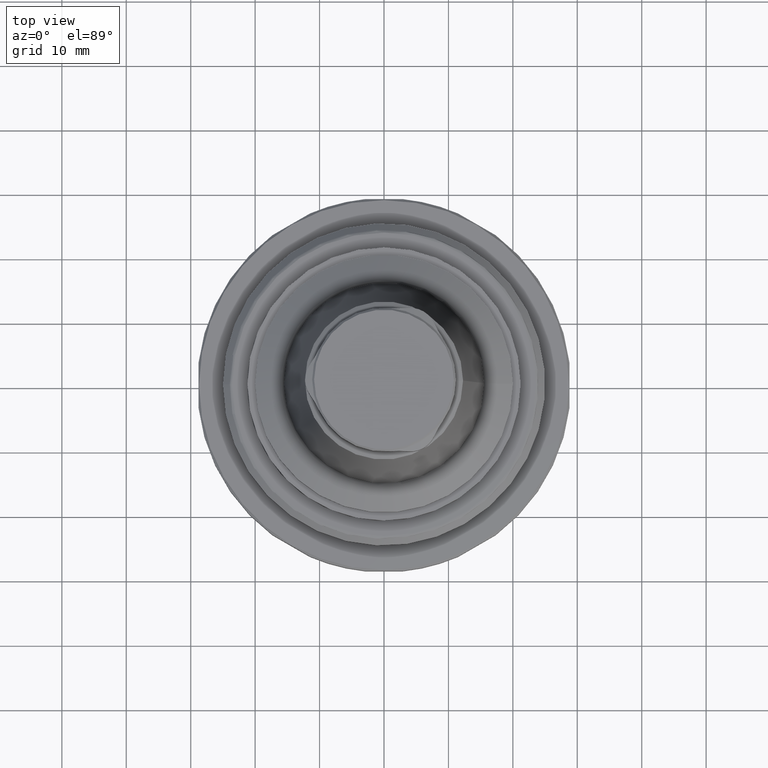
[diagram: clean part render]
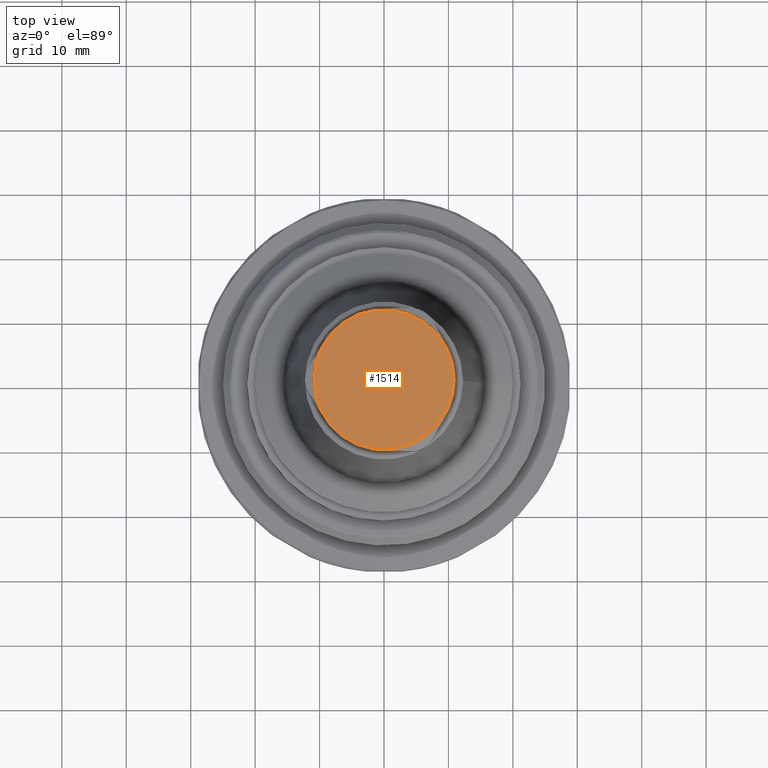
[diagram: same view with one face highlighted and labeled with its STEP entity id]
A machine part, top view. The second image highlights one B-rep face of the part: STEP entity #1514.
In plain terms, the highlighted planar face has unit normal (0, -0, 1).
Its self-contained STEP definition (entity closure, byte-faithful):
#228=PLANE('',#1666);
#471=ORIENTED_EDGE('',*,*,#809,.F.);
#809=EDGE_CURVE('',#994,#994,#1115,.T.);
#994=VERTEX_POINT('',#2522);
#1115=CIRCLE('',#1667,10.85);
#1218=EDGE_LOOP('',(#471));
#1358=FACE_BOUND('',#1218,.T.);
#1514=ADVANCED_FACE('',(#1358),#228,.T.);
#1666=AXIS2_PLACEMENT_3D('',#2520,#1963,#1964);
#1667=AXIS2_PLACEMENT_3D('',#2521,#1965,#1966);
#1963=DIRECTION('',(1.27319154200133E-16,-7.79579225983867E-33,1.));
#1964=DIRECTION('',(-1.,6.12303176911189E-17,1.27319154200133E-16));
#1965=DIRECTION('',(-1.27319154200133E-16,7.79579225983867E-33,-1.));
#1966=DIRECTION('',(1.,-6.12303176911189E-17,-1.27319154200133E-16));
#2520=CARTESIAN_POINT('',(10.85,-6.6434894694864E-16,47.));
#2521=CARTESIAN_POINT('',(-6.41778660856836E-17,3.92963112916449E-33,47.));
#2522=CARTESIAN_POINT('',(10.85,-6.6434894694864E-16,47.));